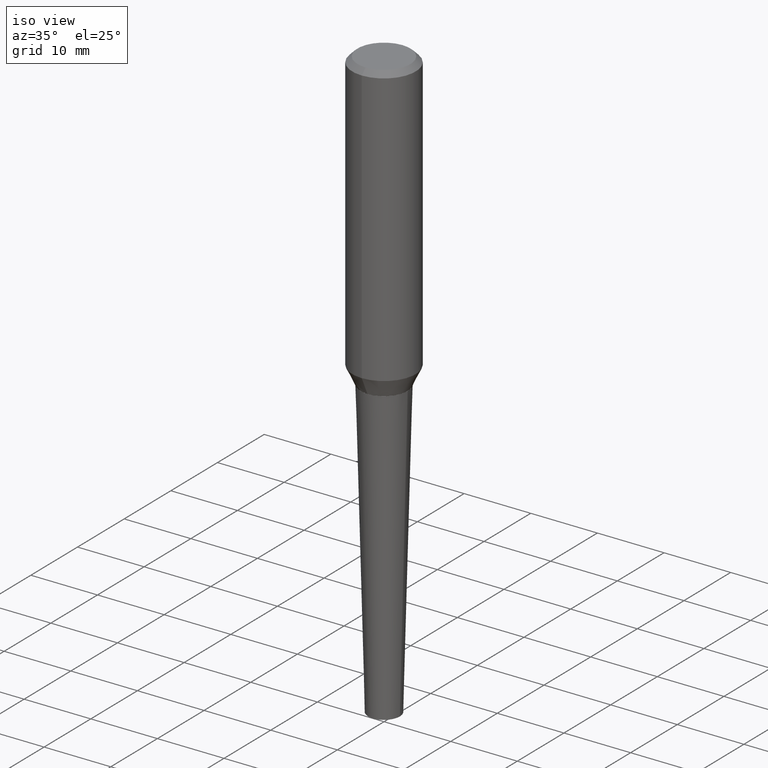
[diagram: clean part render]
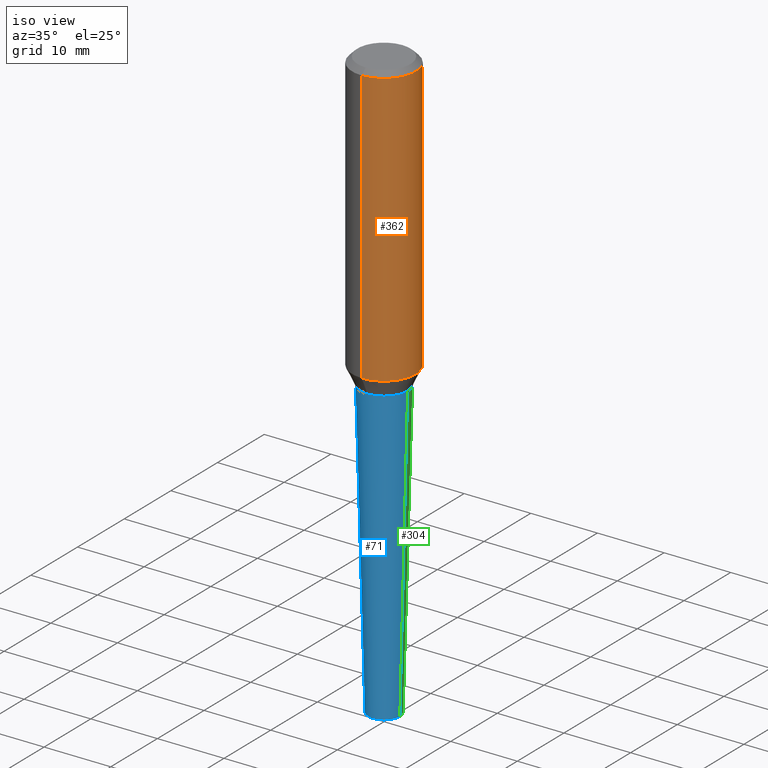
[diagram: same view with three faces highlighted in distinct colors, each labeled with its STEP entity id]
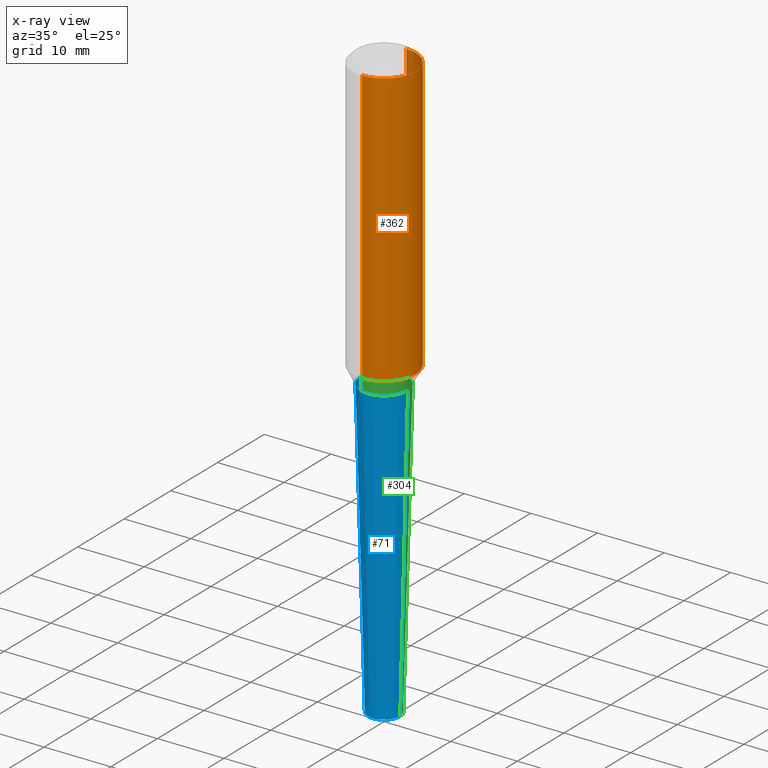
[diagram: x-ray of the same camera — body ghosted, the three highlighted faces saturated]
A machine part, iso view with three faces highlighted in distinct colors.
The next image is the same camera in x-ray (body ghosted, the three faces saturated) — at least one of them is partly hidden behind the body in this view.
Their STEP definitions:

[orange] entity #362 — the highlighted cylindrical surface (partial cylindrical patch) has radius 4.7625 mm, axis along (-0, 0, 1).
#1 = DIRECTION ( 'NONE',  ( -2.680706346625087460E-29, 3.154607792043817320E-15, 1.000000000000000000 ) ) ;
#6 = CYLINDRICAL_SURFACE ( 'NONE', #203, 0.1875000000000001943 ) ;
#42 = CARTESIAN_POINT ( 'NONE',  ( -2.560261695147064885E-30, -5.851919173728164913E-16, -0.03125000000000010408 ) ) ;
#44 = EDGE_CURVE ( 'NONE', #206, #182, #209, .T. ) ;
#48 = DIRECTION ( 'NONE',  ( -2.680706346625087460E-29, 3.154607792043817320E-15, 1.000000000000000000 ) ) ;
#59 = CARTESIAN_POINT ( 'NONE',  ( 1.309305502066175600E-15, 0.1874999999999998890, -0.03125000000000069389 ) ) ;
#79 = CARTESIAN_POINT ( 'NONE',  ( -1.309305502066133790E-15, -0.1875000000000056066, -1.647225283746024838 ) ) ;
#86 = ORIENTED_EDGE ( 'NONE', *, *, #44, .T. ) ;
#103 = AXIS2_PLACEMENT_3D ( 'NONE', #42, #48, #327 ) ;
#106 = CARTESIAN_POINT ( 'NONE',  ( -3.397982428467408395E-30, -4.866104238714468673E-16, 1.912385453283800096E-17 ) ) ;
#134 = VECTOR ( 'NONE', #240, 39.37007874015748143 ) ;
#143 = EDGE_CURVE ( 'NONE', #182, #398, #193, .T. ) ;
#164 = DIRECTION ( 'NONE',  ( -6.982962677686266711E-15, -1.000000000000000000, 2.913971193241881555E-15 ) ) ;
#177 = VERTEX_POINT ( 'NONE', #230 ) ;
#178 = ORIENTED_EDGE ( 'NONE', *, *, #143, .T. ) ;
#182 = VERTEX_POINT ( 'NONE', #326 ) ;
#183 = ORIENTED_EDGE ( 'NONE', *, *, #396, .F. ) ;
#192 = AXIS2_PLACEMENT_3D ( 'NONE', #219, #1, #164 ) ;
#193 = LINE ( 'NONE', #318, #416 ) ;
#203 = AXIS2_PLACEMENT_3D ( 'NONE', #106, #226, #356 ) ;
#206 = VERTEX_POINT ( 'NONE', #79 ) ;
#209 = CIRCLE ( 'NONE', #192, 0.1874999999999999445 ) ;
#219 = CARTESIAN_POINT ( 'NONE',  ( 4.075929029612539620E-29, -5.682960139228246655E-15, -1.647225283746025504 ) ) ;
#226 = DIRECTION ( 'NONE',  ( -2.680706346625087460E-29, 3.154607792043817320E-15, 1.000000000000000000 ) ) ;
#227 = FACE_OUTER_BOUND ( 'NONE', #266, .T. ) ;
#230 = CARTESIAN_POINT ( 'NONE',  ( -1.286343374582167887E-15, -0.1875000000000010270, -0.03124999999999950734 ) ) ;
#235 = LINE ( 'NONE', #272, #134 ) ;
#240 = DIRECTION ( 'NONE',  ( -2.680706346625087460E-29, 3.154607792043817320E-15, 1.000000000000000000 ) ) ;
#245 = EDGE_CURVE ( 'NONE', #177, #398, #332, .T. ) ;
#266 = EDGE_LOOP ( 'NONE', ( #86, #178, #300, #183 ) ) ;
#272 = CARTESIAN_POINT ( 'NONE',  ( -1.309305502066179544E-15, -0.1875000000000006661, 6.106128155410544140E-16 ) ) ;
#285 = DIRECTION ( 'NONE',  ( -2.680706346625087460E-29, 3.154607792043817320E-15, 1.000000000000000000 ) ) ;
#300 = ORIENTED_EDGE ( 'NONE', *, *, #245, .F. ) ;
#318 = CARTESIAN_POINT ( 'NONE',  ( 1.332267629550185482E-15, 0.1874999999999996947, -5.723651064753783135E-16 ) ) ;
#326 = CARTESIAN_POINT ( 'NONE',  ( 1.332267629550207373E-15, 0.1874999999999942824, -1.647225283746025948 ) ) ;
#327 = DIRECTION ( 'NONE',  ( -6.982962677686265922E-15, -1.000000000000000000, 3.164390592661096858E-15 ) ) ;
#332 = CIRCLE ( 'NONE', #103, 0.1875000000000004718 ) ;
#356 = DIRECTION ( 'NONE',  ( -6.982962677686265922E-15, -1.000000000000000000, 3.154607792043817320E-15 ) ) ;
#362 = ADVANCED_FACE ( 'NONE', ( #227 ), #6, .T. ) ;
#396 = EDGE_CURVE ( 'NONE', #206, #177, #235, .T. ) ;
#398 = VERTEX_POINT ( 'NONE', #59 ) ;
#416 = VECTOR ( 'NONE', #285, 39.37007874015748143 ) ;

[blue] entity #71 — the highlighted conical surface has half-angle 1.5 deg.
#3 = CARTESIAN_POINT ( 'NONE',  ( 8.559140821647976968E-29, -1.222018468595100934E-14, -3.500000000000000000 ) ) ;
#4 = DIRECTION ( 'NONE',  ( -0.02617694830786604712, 3.676283300035236100E-15, 0.9996573249755573709 ) ) ;
#5 = AXIS2_PLACEMENT_3D ( 'NONE', #335, #19, #303 ) ;
#12 = EDGE_CURVE ( 'NONE', #325, #125, #123, .T. ) ;
#19 = DIRECTION ( 'NONE',  ( -2.445468806185136597E-29, 3.491481338843145583E-15, 1.000000000000000000 ) ) ;
#29 = VECTOR ( 'NONE', #4, 39.37007874015748143 ) ;
#39 = CARTESIAN_POINT ( 'NONE',  ( -0.09375000000000006939, -1.155405087117591384E-14, -3.500000000000000000 ) ) ;
#55 = ORIENTED_EDGE ( 'NONE', *, *, #397, .F. ) ;
#58 = EDGE_LOOP ( 'NONE', ( #412, #156, #62, #55 ) ) ;
#62 = ORIENTED_EDGE ( 'NONE', *, *, #333, .T. ) ;
#71 = ADVANCED_FACE ( 'NONE', ( #249 ), #210, .T. ) ;
#81 = CARTESIAN_POINT ( 'NONE',  ( -0.09375000000000006939, -8.336200306624222789E-15, -3.500000000000000000 ) ) ;
#97 = CIRCLE ( 'NONE', #365, 0.09375000000000006939 ) ;
#111 = AXIS2_PLACEMENT_3D ( 'NONE', #383, #346, #281 ) ;
#112 = CARTESIAN_POINT ( 'NONE',  ( 0.1395753627460647461, -7.084741891755795010E-15, -1.750000000000000000 ) ) ;
#122 = VECTOR ( 'NONE', #297, 39.37007874015748143 ) ;
#123 = LINE ( 'NONE', #39, #29 ) ;
#125 = VERTEX_POINT ( 'NONE', #220 ) ;
#156 = ORIENTED_EDGE ( 'NONE', *, *, #158, .T. ) ;
#158 = EDGE_CURVE ( 'NONE', #325, #228, #97, .T. ) ;
#173 = LINE ( 'NONE', #386, #122 ) ;
#185 = CIRCLE ( 'NONE', #5, 0.1395753627460647461 ) ;
#195 = DIRECTION ( 'NONE',  ( -2.445468806185136597E-29, 3.491481338843145583E-15, 1.000000000000000000 ) ) ;
#210 = CONICAL_SURFACE ( 'NONE', #111, 0.09375000000000006939, 0.02617993877990783605 ) ;
#220 = CARTESIAN_POINT ( 'NONE',  ( -0.1395753627460647461, -5.118349742072530161E-15, -1.750000000000000000 ) ) ;
#228 = VERTEX_POINT ( 'NONE', #295 ) ;
#236 = VERTEX_POINT ( 'NONE', #112 ) ;
#249 = FACE_OUTER_BOUND ( 'NONE', #58, .T. ) ;
#281 = DIRECTION ( 'NONE',  ( 1.000000000000000000, -6.982962677686257244E-15, 0.000000000000000000 ) ) ;
#295 = CARTESIAN_POINT ( 'NONE',  ( 0.09375000000000006939, -1.287483743698409606E-14, -3.500000000000000000 ) ) ;
#297 = DIRECTION ( 'NONE',  ( 0.02617694830786604712, 3.307492242340466312E-15, 0.9996573249755573709 ) ) ;
#303 = DIRECTION ( 'NONE',  ( 1.000000000000000000, -6.982962677686264344E-15, 0.000000000000000000 ) ) ;
#319 = DIRECTION ( 'NONE',  ( 1.000000000000000000, -6.982962677686257244E-15, 0.000000000000000000 ) ) ;
#325 = VERTEX_POINT ( 'NONE', #81 ) ;
#333 = EDGE_CURVE ( 'NONE', #228, #236, #173, .T. ) ;
#335 = CARTESIAN_POINT ( 'NONE',  ( 4.279570410823988484E-29, -6.110092342975504671E-15, -1.750000000000000000 ) ) ;
#346 = DIRECTION ( 'NONE',  ( -2.445468806185136597E-29, 3.491481338843145583E-15, 1.000000000000000000 ) ) ;
#365 = AXIS2_PLACEMENT_3D ( 'NONE', #3, #195, #319 ) ;
#383 = CARTESIAN_POINT ( 'NONE',  ( 8.559140821647976968E-29, -1.222018468595100934E-14, -3.500000000000000000 ) ) ;
#386 = CARTESIAN_POINT ( 'NONE',  ( 0.09375000000000006939, -1.287483743698409606E-14, -3.500000000000000000 ) ) ;
#397 = EDGE_CURVE ( 'NONE', #125, #236, #185, .T. ) ;
#412 = ORIENTED_EDGE ( 'NONE', *, *, #12, .F. ) ;

[green] entity #304 — the highlighted conical surface has half-angle 1.5 deg.
#4 = DIRECTION ( 'NONE',  ( -0.02617694830786604712, 3.676283300035236100E-15, 0.9996573249755573709 ) ) ;
#11 = FACE_OUTER_BOUND ( 'NONE', #268, .T. ) ;
#12 = EDGE_CURVE ( 'NONE', #325, #125, #123, .T. ) ;
#21 = ORIENTED_EDGE ( 'NONE', *, *, #78, .F. ) ;
#29 = VECTOR ( 'NONE', #4, 39.37007874015748143 ) ;
#39 = CARTESIAN_POINT ( 'NONE',  ( -0.09375000000000006939, -1.155405087117591384E-14, -3.500000000000000000 ) ) ;
#45 = CIRCLE ( 'NONE', #385, 0.09375000000000006939 ) ;
#51 = CARTESIAN_POINT ( 'NONE',  ( 8.559140821647976968E-29, -1.222018468595100934E-14, -3.500000000000000000 ) ) ;
#70 = DIRECTION ( 'NONE',  ( -2.445468806185136597E-29, 3.491481338843145583E-15, 1.000000000000000000 ) ) ;
#78 = EDGE_CURVE ( 'NONE', #236, #125, #194, .T. ) ;
#81 = CARTESIAN_POINT ( 'NONE',  ( -0.09375000000000006939, -8.336200306624222789E-15, -3.500000000000000000 ) ) ;
#82 = ORIENTED_EDGE ( 'NONE', *, *, #98, .T. ) ;
#98 = EDGE_CURVE ( 'NONE', #228, #325, #45, .T. ) ;
#102 = DIRECTION ( 'NONE',  ( -2.445468806185136597E-29, 3.491481338843145583E-15, 1.000000000000000000 ) ) ;
#112 = CARTESIAN_POINT ( 'NONE',  ( 0.1395753627460647461, -7.084741891755795010E-15, -1.750000000000000000 ) ) ;
#122 = VECTOR ( 'NONE', #297, 39.37007874015748143 ) ;
#123 = LINE ( 'NONE', #39, #29 ) ;
#125 = VERTEX_POINT ( 'NONE', #220 ) ;
#126 = DIRECTION ( 'NONE',  ( 1.000000000000000000, -6.982962677686257244E-15, 0.000000000000000000 ) ) ;
#172 = AXIS2_PLACEMENT_3D ( 'NONE', #51, #196, #390 ) ;
#173 = LINE ( 'NONE', #386, #122 ) ;
#194 = CIRCLE ( 'NONE', #400, 0.1395753627460647461 ) ;
#196 = DIRECTION ( 'NONE',  ( -2.445468806185136597E-29, 3.491481338843145583E-15, 1.000000000000000000 ) ) ;
#220 = CARTESIAN_POINT ( 'NONE',  ( -0.1395753627460647461, -5.118349742072530161E-15, -1.750000000000000000 ) ) ;
#228 = VERTEX_POINT ( 'NONE', #295 ) ;
#236 = VERTEX_POINT ( 'NONE', #112 ) ;
#268 = EDGE_LOOP ( 'NONE', ( #82, #392, #21, #302 ) ) ;
#295 = CARTESIAN_POINT ( 'NONE',  ( 0.09375000000000006939, -1.287483743698409606E-14, -3.500000000000000000 ) ) ;
#297 = DIRECTION ( 'NONE',  ( 0.02617694830786604712, 3.307492242340466312E-15, 0.9996573249755573709 ) ) ;
#302 = ORIENTED_EDGE ( 'NONE', *, *, #333, .F. ) ;
#304 = ADVANCED_FACE ( 'NONE', ( #11 ), #378, .T. ) ;
#314 = CARTESIAN_POINT ( 'NONE',  ( 8.559140821647976968E-29, -1.222018468595100934E-14, -3.500000000000000000 ) ) ;
#325 = VERTEX_POINT ( 'NONE', #81 ) ;
#333 = EDGE_CURVE ( 'NONE', #228, #236, #173, .T. ) ;
#378 = CONICAL_SURFACE ( 'NONE', #172, 0.09375000000000006939, 0.02617993877990783605 ) ;
#385 = AXIS2_PLACEMENT_3D ( 'NONE', #314, #70, #126 ) ;
#386 = CARTESIAN_POINT ( 'NONE',  ( 0.09375000000000006939, -1.287483743698409606E-14, -3.500000000000000000 ) ) ;
#390 = DIRECTION ( 'NONE',  ( 1.000000000000000000, -6.982962677686257244E-15, 0.000000000000000000 ) ) ;
#392 = ORIENTED_EDGE ( 'NONE', *, *, #12, .T. ) ;
#400 = AXIS2_PLACEMENT_3D ( 'NONE', #414, #102, #415 ) ;
#414 = CARTESIAN_POINT ( 'NONE',  ( 4.279570410823988484E-29, -6.110092342975504671E-15, -1.750000000000000000 ) ) ;
#415 = DIRECTION ( 'NONE',  ( 1.000000000000000000, -6.982962677686264344E-15, 0.000000000000000000 ) ) ;